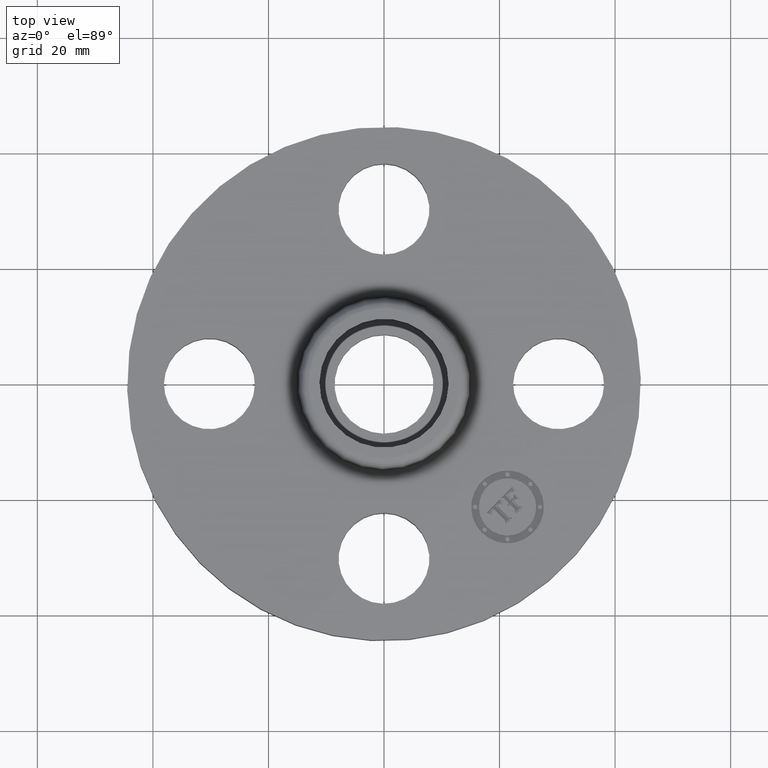
[diagram: clean part render]
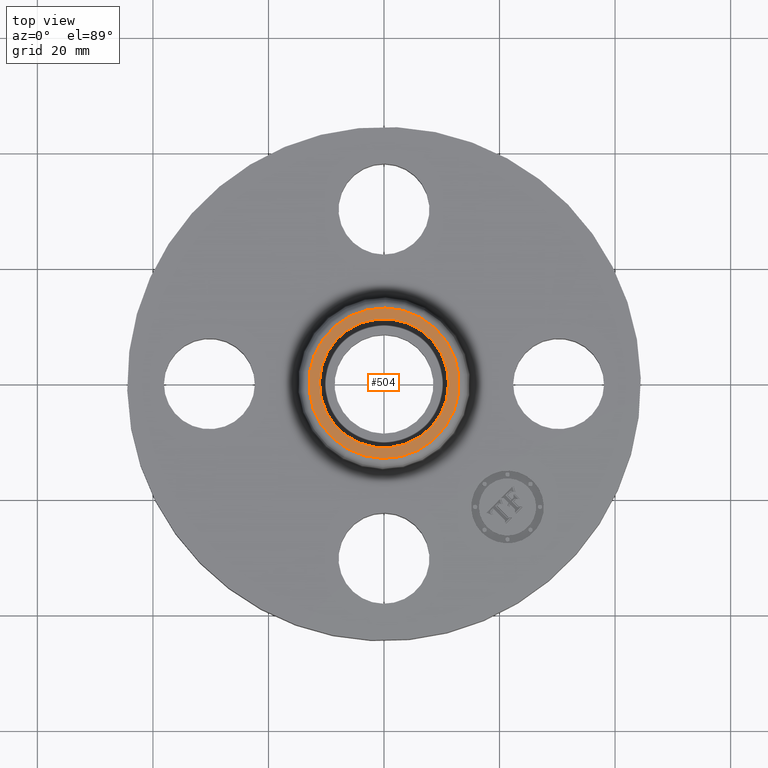
[diagram: same view with one face highlighted and labeled with its STEP entity id]
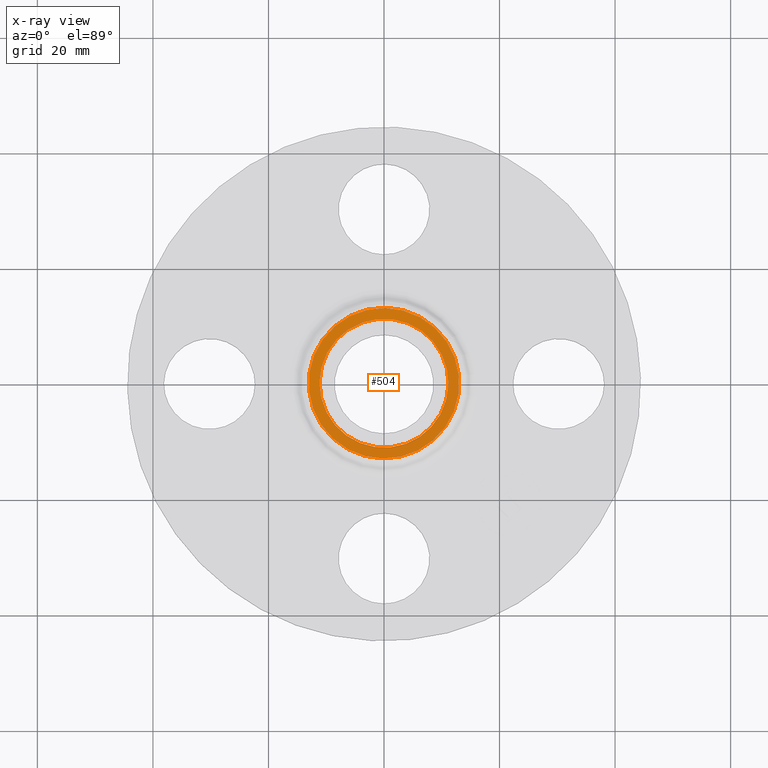
[diagram: x-ray of the same camera — body ghosted, the highlighted face saturated]
A machine part, top view. The second image highlights one B-rep face of the part: STEP entity #504.
The next image is the same camera in x-ray: the body ghosted, the highlighted face saturated — about 0% of this face is hidden behind the body in this view.
In plain terms, the highlighted planar face has unit normal (0, 0, -1).
Its self-contained STEP definition (entity closure, byte-faithful):
#448=AXIS2_PLACEMENT_3D('Circle Axis2P3D',#446,#447,$) ;
#467=AXIS2_PLACEMENT_3D('Circle Axis2P3D',#465,#466,$) ;
#480=AXIS2_PLACEMENT_3D('Plane Axis2P3D',#477,#478,#479) ;
#488=AXIS2_PLACEMENT_3D('Circle Axis2P3D',#486,#487,$) ;
#497=AXIS2_PLACEMENT_3D('Circle Axis2P3D',#495,#496,$) ;
#443=CARTESIAN_POINT('Vertex',(0.245904629528,0.450125405063,0.560000000002)) ;
#446=CARTESIAN_POINT('Axis2P3D Location',(0.,0.,0.560000000002)) ;
#450=CARTESIAN_POINT('Vertex',(-0.245904629528,-0.450125405063,0.560000000002)) ;
#465=CARTESIAN_POINT('Axis2P3D Location',(0.,0.,0.560000000002)) ;
#477=CARTESIAN_POINT('Axis2P3D Location',(0.,0.512915165604,0.560000000002)) ;
#486=CARTESIAN_POINT('Axis2P3D Location',(1.39870617276E-016,1.39870617276E-016,0.560000000002)) ;
#490=CARTESIAN_POINT('Vertex',(-0.386136327233,0.210947236987,0.560000000002)) ;
#492=CARTESIAN_POINT('Vertex',(0.386136327233,-0.210947236987,0.560000000002)) ;
#495=CARTESIAN_POINT('Axis2P3D Location',(1.57354444435E-016,1.39870617276E-016,0.560000000002)) ;
#447=DIRECTION('Axis2P3D Direction',(0.,0.,-0.0393700787402)) ;
#466=DIRECTION('Axis2P3D Direction',(0.,0.,-0.0393700787402)) ;
#478=DIRECTION('Axis2P3D Direction',(0.,0.,-0.0393700787402)) ;
#479=DIRECTION('Axis2P3D XDirection',(0.0393700787402,0.,0.)) ;
#487=DIRECTION('Axis2P3D Direction',(0.,0.,-0.0393700787402)) ;
#496=DIRECTION('Axis2P3D Direction',(0.,0.,-0.0393700787402)) ;
#483=ORIENTED_EDGE('',*,*,#452,.F.) ;
#484=ORIENTED_EDGE('',*,*,#469,.F.) ;
#501=ORIENTED_EDGE('',*,*,#494,.T.) ;
#502=ORIENTED_EDGE('',*,*,#499,.T.) ;
#503=FACE_BOUND('',#500,.T.) ;
#504=ADVANCED_FACE('PartBody',(#485,#503),#481,.F.) ;
#449=CIRCLE('generated circle',#448,0.512915165604) ;
#468=CIRCLE('generated circle',#467,0.512915165604) ;
#489=CIRCLE('generated circle',#488,0.440000000002) ;
#498=CIRCLE('generated circle',#497,0.440000000002) ;
#452=EDGE_CURVE('',#444,#451,#449,.T.) ;
#469=EDGE_CURVE('',#451,#444,#468,.T.) ;
#494=EDGE_CURVE('',#491,#493,#489,.T.) ;
#499=EDGE_CURVE('',#493,#491,#498,.T.) ;
#482=EDGE_LOOP('',(#483,#484)) ;
#500=EDGE_LOOP('',(#501,#502)) ;
#485=FACE_OUTER_BOUND('',#482,.T.) ;
#481=PLANE('',#480) ;
#444=VERTEX_POINT('',#443) ;
#451=VERTEX_POINT('',#450) ;
#491=VERTEX_POINT('',#490) ;
#493=VERTEX_POINT('',#492) ;